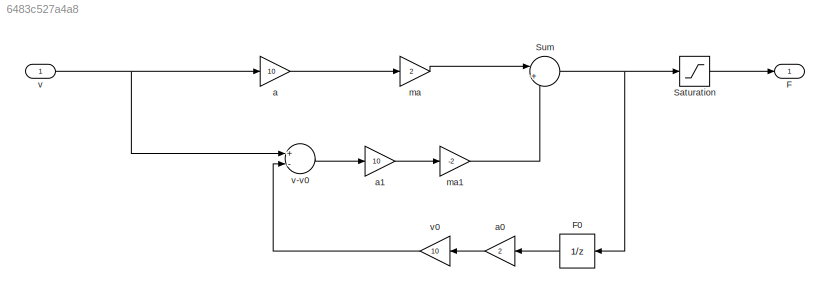
MODEL slx_6483c527a4a8
KIND model
BLOCK [Outport] F
  IconDisplay = Port number
BLOCK [UnitDelay] F0
  InputProcessing = Elements as channels (sample based)
  SampleTime = -1
BLOCK [Saturate] Saturation
  InputPortMap = u0
  LowerLimit = -40
  Ports = [1, 1]
  UpperLimit = 40
BLOCK [Sum] Sum
  IconShape = round
  InputSameDT = off
  Inputs = |++
  OutDataTypeStr = Inherit: Inherit via internal rule
  Ports = [2, 1]
  SaturateOnIntegerOverflow = off
BLOCK [Gain] a
  Gain = 10
  OutDataTypeStr = Inherit: Inherit via internal rule
  ParamDataTypeStr = Inherit: Inherit via internal rule
  SaturateOnIntegerOverflow = off
BLOCK [Gain] a0
  Gain = 2
  OutDataTypeStr = Inherit: Inherit via internal rule
  ParamDataTypeStr = Inherit: Inherit via internal rule
  SaturateOnIntegerOverflow = off
BLOCK [Gain] a1
  Gain = 10
  OutDataTypeStr = Inherit: Inherit via internal rule
  ParamDataTypeStr = Inherit: Inherit via internal rule
  SaturateOnIntegerOverflow = off
BLOCK [Gain] ma
  Gain = 2
  OutDataTypeStr = Inherit: Inherit via internal rule
  ParamDataTypeStr = Inherit: Inherit via internal rule
  SaturateOnIntegerOverflow = off
BLOCK [Gain] ma1
  Gain = -2
  OutDataTypeStr = Inherit: Inherit via internal rule
  ParamDataTypeStr = Inherit: Inherit via internal rule
  SaturateOnIntegerOverflow = off
BLOCK [Inport] v
  IconDisplay = Port number
BLOCK [Sum] v-v0
  InputSameDT = off
  Inputs = +-
  OutDataTypeStr = Inherit: Inherit via internal rule
  Ports = [2, 1]
  SaturateOnIntegerOverflow = off
BLOCK [Gain] v0
  Gain = 10
  OutDataTypeStr = Inherit: Inherit via internal rule
  ParamDataTypeStr = Inherit: Inherit via internal rule
  SaturateOnIntegerOverflow = off
LINE F0:1 -> a0:1
LINE Saturation:1 -> F:1
NET Sum:1 -> F0:1, Saturation:1
LINE a0:1 -> v0:1
LINE a1:1 -> ma1:1
LINE a:1 -> ma:1
LINE ma1:1 -> Sum:2
LINE ma:1 -> Sum:1
LINE v-v0:1 -> a1:1
LINE v0:1 -> v-v0:2
NET v:1 -> a:1, v-v0:1
note: NET lines group one-source signal fan-out (src -> all destinations, sorted); 1:1 wires keep LINE
